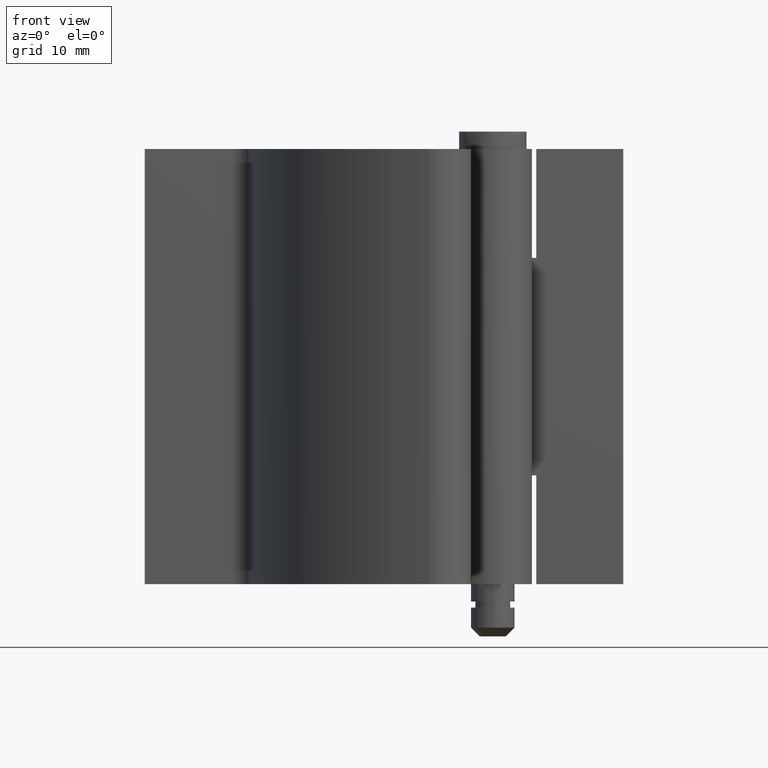
[diagram: clean part render]
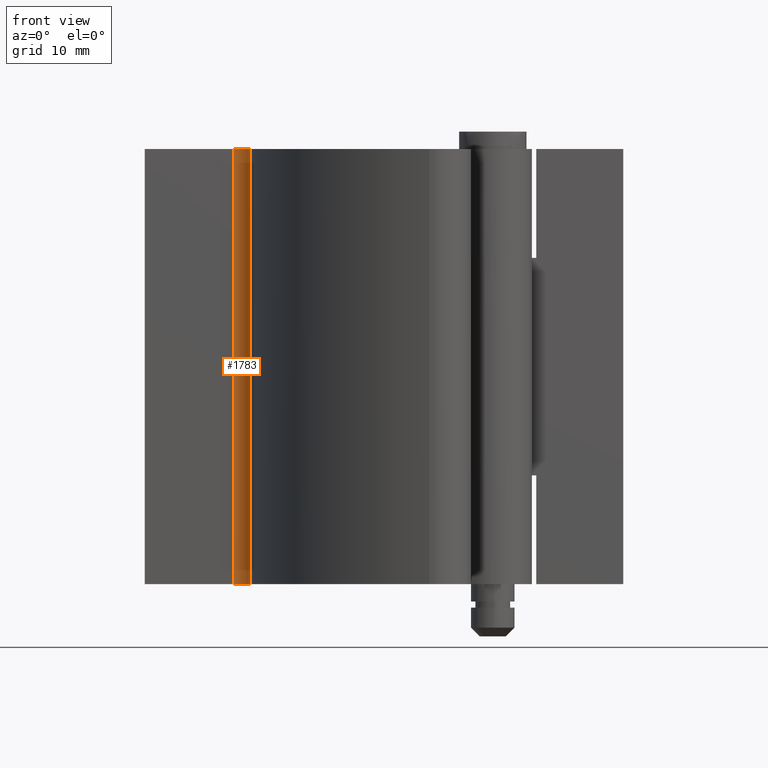
[diagram: same view with one face highlighted and labeled with its STEP entity id]
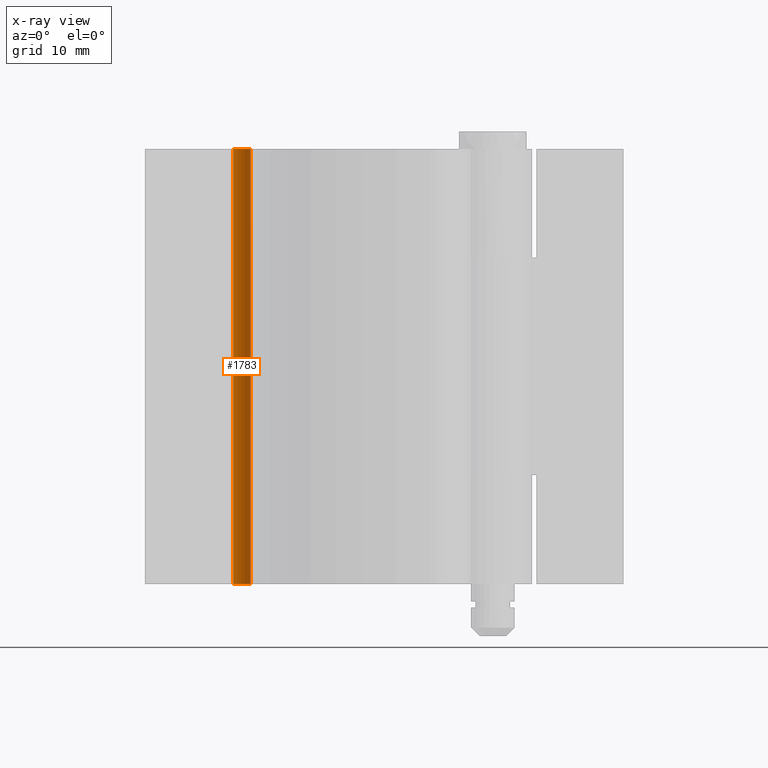
[diagram: x-ray of the same camera — body ghosted, the highlighted face saturated]
A machine part, front view. The second image highlights one B-rep face of the part: STEP entity #1783.
The next image is the same camera in x-ray: the body ghosted, the highlighted face saturated — about 0% of this face is hidden behind the body in this view.
In plain terms, the highlighted face is a freeform B-spline surface patch.
Its self-contained STEP definition (entity closure, byte-faithful):
#1309=CARTESIAN_POINT('',(-27.836752632129599,0.753171255150635,6.0));
#1310=VERTEX_POINT('',#1309);
#1324=CARTESIAN_POINT('',(-29.820664000000001,2.500000000000000,6.0));
#1325=VERTEX_POINT('',#1324);
#1326=CARTESIAN_POINT('',(-29.820664000000001,2.500000000000000,6.0));
#1327=CARTESIAN_POINT('',(-28.059669256848284,2.500000000000000,6.0));
#1328=CARTESIAN_POINT('',(-27.836752632129588,0.753171255150637,6.0));
#1336=(BOUNDED_CURVE()B_SPLINE_CURVE(2,(#1326,#1327,#1328),.UNSPECIFIED.,.F.,.U.)CURVE()GEOMETRIC_REPRESENTATION_ITEM()QUASI_UNIFORM_CURVE()RATIONAL_B_SPLINE_CURVE((1.0,0.750528356418103,1.0))REPRESENTATION_ITEM(''));
#1337=EDGE_CURVE('',#1325,#1310,#1336,.T.);
#1375=CARTESIAN_POINT('',(-29.820664000000001,2.500000000000000,56.0));
#1376=VERTEX_POINT('',#1375);
#1382=CARTESIAN_POINT('',(-27.836752632129599,0.753171255150635,56.0));
#1383=VERTEX_POINT('',#1382);
#1384=CARTESIAN_POINT('',(-29.820664000000001,2.500000000000000,56.0));
#1385=CARTESIAN_POINT('',(-28.059669256848284,2.500000000000000,55.999999999999993));
#1386=CARTESIAN_POINT('',(-27.836752632129588,0.753171255150637,56.0));
#1394=(BOUNDED_CURVE()B_SPLINE_CURVE(2,(#1384,#1385,#1386),.UNSPECIFIED.,.F.,.U.)CURVE()GEOMETRIC_REPRESENTATION_ITEM()QUASI_UNIFORM_CURVE()RATIONAL_B_SPLINE_CURVE((1.0,0.750528356418103,1.0))REPRESENTATION_ITEM(''));
#1395=EDGE_CURVE('',#1376,#1383,#1394,.T.);
#1751=CARTESIAN_POINT('',(-27.836752632129599,0.753171255150635,56.0));
#1752=CARTESIAN_POINT('',(-27.836752632129599,0.753171255150635,6.0));
#1753=QUASI_UNIFORM_CURVE('',1,(#1751,#1752),.UNSPECIFIED.,.F.,.U.);
#1754=EDGE_CURVE('',#1383,#1310,#1753,.T.);
#1759=CARTESIAN_POINT('',(-27.829871603265641,0.691691505040446,57.250000000000007));
#1760=CARTESIAN_POINT('',(-27.829871603265641,0.691691505040446,4.718749999999993));
#1761=CARTESIAN_POINT('',(-28.015859475228147,2.623249407461016,57.250000000000007));
#1762=CARTESIAN_POINT('',(-28.015859475228147,2.623249407461016,4.718749999999993));
#1763=CARTESIAN_POINT('',(-29.952152758314561,2.495672995868035,57.250000000000007));
#1764=CARTESIAN_POINT('',(-29.952152758314561,2.495672995868035,4.718749999999992));
#1772=(BOUNDED_SURFACE()B_SPLINE_SURFACE(1,2,((#1759,#1761,#1763),(#1760,#1762,#1764)),.UNSPECIFIED.,.F.,.F.,.U.)B_SPLINE_SURFACE_WITH_KNOTS((2,2),(3,3),(0.0,52.531250000000007),(0.0,3.243155494571176),.UNSPECIFIED.)GEOMETRIC_REPRESENTATION_ITEM()RATIONAL_B_SPLINE_SURFACE(((1.0,0.715851370890298,0.994845339122176),(1.0,0.715851370890298,0.994845339122176)))REPRESENTATION_ITEM('')SURFACE());
#1773=ORIENTED_EDGE('',*,*,#1337,.T.);
#1774=ORIENTED_EDGE('',*,*,#1754,.F.);
#1775=ORIENTED_EDGE('',*,*,#1395,.F.);
#1776=CARTESIAN_POINT('',(-29.820664000000001,2.500000000000000,56.0));
#1777=CARTESIAN_POINT('',(-29.820664000000001,2.500000000000000,6.0));
#1778=QUASI_UNIFORM_CURVE('',1,(#1776,#1777),.UNSPECIFIED.,.F.,.U.);
#1779=EDGE_CURVE('',#1376,#1325,#1778,.T.);
#1780=ORIENTED_EDGE('',*,*,#1779,.T.);
#1781=EDGE_LOOP('',(#1773,#1774,#1775,#1780));
#1782=FACE_OUTER_BOUND('',#1781,.T.);
#1783=ADVANCED_FACE('',(#1782),#1772,.F.);